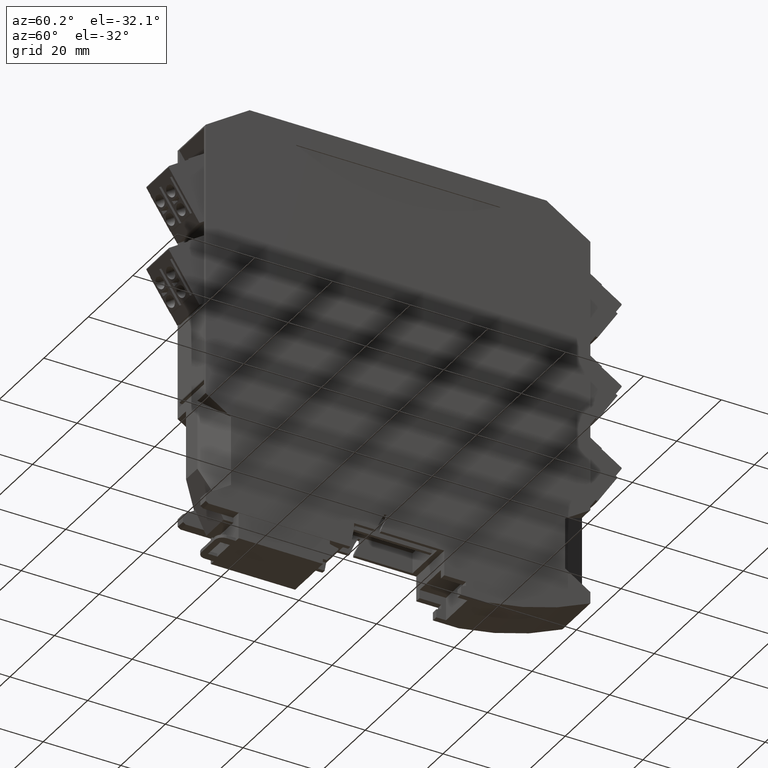
[diagram: clean part render]
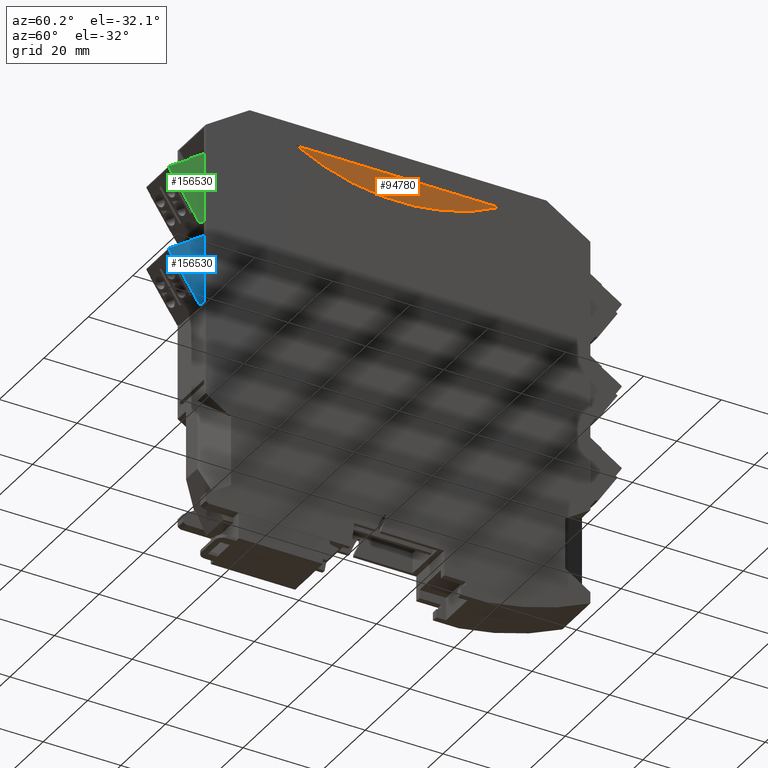
[diagram: same view with three faces highlighted in distinct colors, each labeled with its STEP entity id]
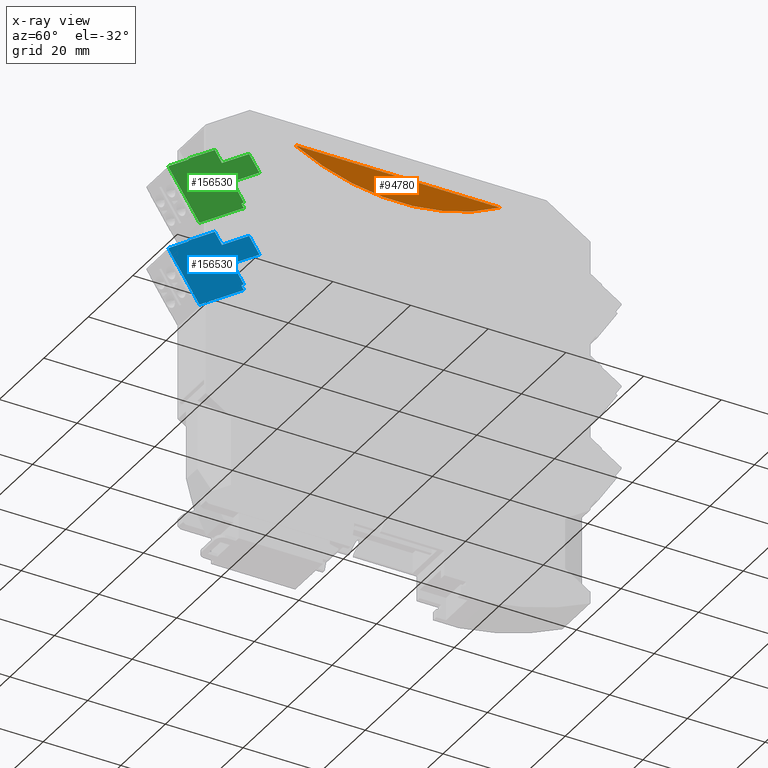
[diagram: x-ray of the same camera — body ghosted, the three highlighted faces saturated]
A machine part, auxiliary view with three faces highlighted in distinct colors.
The next image is the same camera in x-ray (body ghosted, the three faces saturated) — at least one of them is partly hidden behind the body in this view.
Their STEP definitions:

[orange] entity #94780 — the highlighted planar face has unit normal (1, -0, -0).
#94130=CARTESIAN_POINT('',(12.3999992223139,75.8499500002824,
108.249999999994));
#94140=VERTEX_POINT('',#94130);
#94170=CARTESIAN_POINT('',(12.3999992223139,16.8702257341715,
108.249999999997));
#94180=DIRECTION('',(-1.13632427452536E-31,1.,-4.97572203083267E-14));
#94190=VECTOR('',#94180,1.);
#94200=LINE('',#94170,#94190);
#94210=CARTESIAN_POINT('',(12.3999992223139,23.1552602197185,
108.249999999997));
#94220=VERTEX_POINT('',#94210);
#94230=EDGE_CURVE('',#94220,#94140,#94200,.T.);
#94470=CARTESIAN_POINT('',(12.3999992223139,49.5000000002872,
104.849999999959));
#94480=DIRECTION('',(1.,-5.21592700555424E-36,-2.28384227807285E-18));
#94490=DIRECTION('',(-4.191076862855E-30,1.,-1.83510136361891E-12));
#94500=AXIS2_PLACEMENT_3D('',#94470,#94480,#94490);
#94510=PLANE('',#94500);
#94520=ORIENTED_EDGE('',*,*,#94230,.F.);
#94530=CARTESIAN_POINT('',(12.3999992223139,49.5000000003095,
87.6631628058867));
#94540=DIRECTION('',(-1.40607370632767E-18,-0.788010753607329,
-0.615661475324882));
#94550=VECTOR('',#94540,1.);
#94560=LINE('',#94530,#94550);
#94570=CARTESIAN_POINT('',(12.3999992223139,75.7980109545857,
108.209420770137));
#94580=VERTEX_POINT('',#94570);
#94590=EDGE_CURVE('',#94140,#94580,#94560,.T.);
#94600=ORIENTED_EDGE('',*,*,#94590,.F.);
#94610=CARTESIAN_POINT('',(12.3999992223139,49.5000000003042,
156.393092299507));
#94620=DIRECTION('',(-1.,5.21592700555424E-36,2.28384227807285E-18));
#94630=DIRECTION('',(-1.13593727821452E-31,-1.,-4.97357076646706E-14));
#94640=AXIS2_PLACEMENT_3D('',#94610,#94620,#94630);
#94650=CIRCLE('',#94640,54.8930922995028);
#94660=CARTESIAN_POINT('',(12.3999992223139,23.2192573012937,
108.199999999986));
#94670=VERTEX_POINT('',#94660);
#94680=EDGE_CURVE('',#94580,#94670,#94650,.T.);
#94690=ORIENTED_EDGE('',*,*,#94680,.F.);
#94700=CARTESIAN_POINT('',(12.3999992223139,49.5000000003095,
87.6672334752794));
#94710=DIRECTION('',(1.40607370633292E-18,-0.788010753605531,
0.615661475327183));
#94720=VECTOR('',#94710,1.);
#94730=LINE('',#94700,#94720);
#94740=EDGE_CURVE('',#94670,#94220,#94730,.T.);
#94750=ORIENTED_EDGE('',*,*,#94740,.F.);
#94760=EDGE_LOOP('',(#94750,#94690,#94600,#94520));
#94770=FACE_OUTER_BOUND('',#94760,.T.);
#94780=ADVANCED_FACE('',(#94770),#94510,.T.);

[blue] entity #156530 — the highlighted planar face has unit normal (1, -0, -0).
#155450=CARTESIAN_POINT('',(31.0390685734126,23.6307048378946,
-0.0250000000000341));
#155460=DIRECTION('',(0.,0.,-1.));
#155470=DIRECTION('',(-1.,7.91692437432842E-14,0.));
#155480=AXIS2_PLACEMENT_3D('',#155450,#155460,#155470);
#155490=PLANE('',#155480);
#155500=CARTESIAN_POINT('',(22.0140685734121,0.,-0.0250000000000341));
#155510=DIRECTION('',(0.,-1.,0.));
#155520=VECTOR('',#155510,1.);
#155530=LINE('',#155500,#155520);
#155540=CARTESIAN_POINT('',(22.014068573413,31.2307048378954,
-0.0250000000000341));
#155550=VERTEX_POINT('',#155540);
#155560=CARTESIAN_POINT('',(22.014068573413,27.8307048378961,
-0.0250000000000341));
#155570=VERTEX_POINT('',#155560);
#155580=EDGE_CURVE('',#155550,#155570,#155530,.T.);
#155590=ORIENTED_EDGE('',*,*,#155580,.F.);
#155600=CARTESIAN_POINT('',(0.,27.8307048378961,-0.0250000000000306));
#155610=DIRECTION('',(1.,-1.11892558990331E-45,0.));
#155620=VECTOR('',#155610,1.);
#155630=LINE('',#155600,#155620);
#155640=CARTESIAN_POINT('',(13.6840685734126,27.8307048378961,
-0.0250000000000341));
#155650=VERTEX_POINT('',#155640);
#155660=EDGE_CURVE('',#155650,#155570,#155630,.T.);
#155670=ORIENTED_EDGE('',*,*,#155660,.T.);
#155680=CARTESIAN_POINT('',(13.6840685734126,0.,-0.0250000000000341));
#155690=DIRECTION('',(-1.11892558990331E-45,-1.,1.26217744835362E-29));
#155700=VECTOR('',#155690,1.);
#155710=LINE('',#155680,#155700);
#155720=CARTESIAN_POINT('',(13.6840685734126,22.9307048378954,
-0.0250000000000341));
#155730=VERTEX_POINT('',#155720);
#155740=EDGE_CURVE('',#155650,#155730,#155710,.T.);
#155750=ORIENTED_EDGE('',*,*,#155740,.F.);
#155760=CARTESIAN_POINT('',(0.,22.9307048378954,-0.0250000000000306));
#155770=DIRECTION('',(1.,-1.11892558990331E-45,0.));
#155780=VECTOR('',#155770,1.);
#155790=LINE('',#155760,#155780);
#155800=CARTESIAN_POINT('',(22.014068573413,22.9307048378954,
-0.0250000000000341));
#155810=VERTEX_POINT('',#155800);
#155820=EDGE_CURVE('',#155730,#155810,#155790,.T.);
#155830=ORIENTED_EDGE('',*,*,#155820,.F.);
#155840=CARTESIAN_POINT('',(22.014068573412,17.5002595155735,
-0.0250000000000341));
#155850=VERTEX_POINT('',#155840);
#155860=EDGE_CURVE('',#155810,#155850,#155530,.T.);
#155870=ORIENTED_EDGE('',*,*,#155860,.F.);
#155880=CARTESIAN_POINT('',(0.,19.426240953831,-0.0250000000000341));
#155890=DIRECTION('',(0.996194698091739,-0.0871557427477325,0.));
#155900=VECTOR('',#155890,1.);
#155910=LINE('',#155880,#155900);
#155920=CARTESIAN_POINT('',(22.8090821771809,17.4307048378947,
-0.0250000000000341));
#155930=VERTEX_POINT('',#155920);
#155940=EDGE_CURVE('',#155850,#155930,#155910,.T.);
#155950=ORIENTED_EDGE('',*,*,#155940,.F.);
#155960=CARTESIAN_POINT('',(22.8090821771796,0.,-0.0250000000000341));
#155970=DIRECTION('',(7.46069872548105E-14,1.,0.));
#155980=VECTOR('',#155970,1.);
#155990=LINE('',#155960,#155980);
#156000=CARTESIAN_POINT('',(22.8090821771808,16.2307048378947,
-0.0250000000000341));
#156010=VERTEX_POINT('',#156000);
#156020=EDGE_CURVE('',#156010,#155930,#155990,.T.);
#156030=ORIENTED_EDGE('',*,*,#156020,.T.);
#156040=CARTESIAN_POINT('',(0.,16.2307048378964,-0.0250000000000341));
#156050=DIRECTION('',(1.,-7.46069872548105E-14,0.));
#156060=VECTOR('',#156050,1.);
#156070=LINE('',#156040,#156060);
#156080=CARTESIAN_POINT('',(36.4640685734126,16.2307048378937,
-0.0250000000000341));
#156090=VERTEX_POINT('',#156080);
#156100=EDGE_CURVE('',#156010,#156090,#156070,.T.);
#156110=ORIENTED_EDGE('',*,*,#156100,.F.);
#156120=CARTESIAN_POINT('',(36.4640685734126,1.20081722343457E-12,
-0.0250000000000341));
#156130=DIRECTION('',(0.,-1.,0.));
#156140=VECTOR('',#156130,1.);
#156150=LINE('',#156120,#156140);
#156160=CARTESIAN_POINT('',(36.4640685734126,30.7307048378945,
-0.0250000000000341));
#156170=VERTEX_POINT('',#156160);
#156180=EDGE_CURVE('',#156170,#156090,#156150,.T.);
#156190=ORIENTED_EDGE('',*,*,#156180,.T.);
#156200=CARTESIAN_POINT('',(36.1640685734126,30.7307048378945,
-0.0250000000000341));
#156210=DIRECTION('',(0.,0.,-1.));
#156220=DIRECTION('',(-1.,0.,0.));
#156230=AXIS2_PLACEMENT_3D('',#156200,#156210,#156220);
#156240=CIRCLE('',#156230,0.3);
#156250=CARTESIAN_POINT('',(36.1640685734126,31.0307048378945,
-0.0250000000000341));
#156260=VERTEX_POINT('',#156250);
#156270=EDGE_CURVE('',#156260,#156170,#156240,.T.);
#156280=ORIENTED_EDGE('',*,*,#156270,.T.);
#156290=CARTESIAN_POINT('',(-2.48689957516035E-14,31.0307048378945,
-0.0250000000000341));
#156300=DIRECTION('',(-1.,0.,0.));
#156310=VECTOR('',#156300,1.);
#156320=LINE('',#156290,#156310);
#156330=CARTESIAN_POINT('',(30.1640685734126,31.0307048378945,
-0.0250000000000341));
#156340=VERTEX_POINT('',#156330);
#156350=EDGE_CURVE('',#156260,#156340,#156320,.T.);
#156360=ORIENTED_EDGE('',*,*,#156350,.F.);
#156370=CARTESIAN_POINT('',(30.1640685734102,1.26121335597418E-12,
-0.0250000000000341));
#156380=DIRECTION('',(-7.91692437432842E-14,-1.,0.));
#156390=VECTOR('',#156380,1.);
#156400=LINE('',#156370,#156390);
#156410=CARTESIAN_POINT('',(30.1640685734126,31.2307048378948,
-0.0250000000000341));
#156420=VERTEX_POINT('',#156410);
#156430=EDGE_CURVE('',#156420,#156340,#156400,.T.);
#156440=ORIENTED_EDGE('',*,*,#156430,.T.);
#156450=CARTESIAN_POINT('',(-2.48689957516035E-14,31.230704837897,
-0.0250000000000341));
#156460=DIRECTION('',(1.,-7.46069872548105E-14,0.));
#156470=VECTOR('',#156460,1.);
#156480=LINE('',#156450,#156470);
#156490=EDGE_CURVE('',#155550,#156420,#156480,.T.);
#156500=ORIENTED_EDGE('',*,*,#156490,.T.);
#156510=EDGE_LOOP('',(#156500,#156440,#156360,#156280,#156190,#156110,
#156030,#155950,#155870,#155830,#155750,#155670,#155590));
#156520=FACE_OUTER_BOUND('',#156510,.T.);
#156530=ADVANCED_FACE('',(#156520),#155490,.T.);

[green] entity #156530 — the highlighted planar face has unit normal (1, -0, -0).
#155450=CARTESIAN_POINT('',(31.0390685734126,23.6307048378946,
-0.0250000000000341));
#155460=DIRECTION('',(0.,0.,-1.));
#155470=DIRECTION('',(-1.,7.91692437432842E-14,0.));
#155480=AXIS2_PLACEMENT_3D('',#155450,#155460,#155470);
#155490=PLANE('',#155480);
#155500=CARTESIAN_POINT('',(22.0140685734121,0.,-0.0250000000000341));
#155510=DIRECTION('',(0.,-1.,0.));
#155520=VECTOR('',#155510,1.);
#155530=LINE('',#155500,#155520);
#155540=CARTESIAN_POINT('',(22.014068573413,31.2307048378954,
-0.0250000000000341));
#155550=VERTEX_POINT('',#155540);
#155560=CARTESIAN_POINT('',(22.014068573413,27.8307048378961,
-0.0250000000000341));
#155570=VERTEX_POINT('',#155560);
#155580=EDGE_CURVE('',#155550,#155570,#155530,.T.);
#155590=ORIENTED_EDGE('',*,*,#155580,.F.);
#155600=CARTESIAN_POINT('',(0.,27.8307048378961,-0.0250000000000306));
#155610=DIRECTION('',(1.,-1.11892558990331E-45,0.));
#155620=VECTOR('',#155610,1.);
#155630=LINE('',#155600,#155620);
#155640=CARTESIAN_POINT('',(13.6840685734126,27.8307048378961,
-0.0250000000000341));
#155650=VERTEX_POINT('',#155640);
#155660=EDGE_CURVE('',#155650,#155570,#155630,.T.);
#155670=ORIENTED_EDGE('',*,*,#155660,.T.);
#155680=CARTESIAN_POINT('',(13.6840685734126,0.,-0.0250000000000341));
#155690=DIRECTION('',(-1.11892558990331E-45,-1.,1.26217744835362E-29));
#155700=VECTOR('',#155690,1.);
#155710=LINE('',#155680,#155700);
#155720=CARTESIAN_POINT('',(13.6840685734126,22.9307048378954,
-0.0250000000000341));
#155730=VERTEX_POINT('',#155720);
#155740=EDGE_CURVE('',#155650,#155730,#155710,.T.);
#155750=ORIENTED_EDGE('',*,*,#155740,.F.);
#155760=CARTESIAN_POINT('',(0.,22.9307048378954,-0.0250000000000306));
#155770=DIRECTION('',(1.,-1.11892558990331E-45,0.));
#155780=VECTOR('',#155770,1.);
#155790=LINE('',#155760,#155780);
#155800=CARTESIAN_POINT('',(22.014068573413,22.9307048378954,
-0.0250000000000341));
#155810=VERTEX_POINT('',#155800);
#155820=EDGE_CURVE('',#155730,#155810,#155790,.T.);
#155830=ORIENTED_EDGE('',*,*,#155820,.F.);
#155840=CARTESIAN_POINT('',(22.014068573412,17.5002595155735,
-0.0250000000000341));
#155850=VERTEX_POINT('',#155840);
#155860=EDGE_CURVE('',#155810,#155850,#155530,.T.);
#155870=ORIENTED_EDGE('',*,*,#155860,.F.);
#155880=CARTESIAN_POINT('',(0.,19.426240953831,-0.0250000000000341));
#155890=DIRECTION('',(0.996194698091739,-0.0871557427477325,0.));
#155900=VECTOR('',#155890,1.);
#155910=LINE('',#155880,#155900);
#155920=CARTESIAN_POINT('',(22.8090821771809,17.4307048378947,
-0.0250000000000341));
#155930=VERTEX_POINT('',#155920);
#155940=EDGE_CURVE('',#155850,#155930,#155910,.T.);
#155950=ORIENTED_EDGE('',*,*,#155940,.F.);
#155960=CARTESIAN_POINT('',(22.8090821771796,0.,-0.0250000000000341));
#155970=DIRECTION('',(7.46069872548105E-14,1.,0.));
#155980=VECTOR('',#155970,1.);
#155990=LINE('',#155960,#155980);
#156000=CARTESIAN_POINT('',(22.8090821771808,16.2307048378947,
-0.0250000000000341));
#156010=VERTEX_POINT('',#156000);
#156020=EDGE_CURVE('',#156010,#155930,#155990,.T.);
#156030=ORIENTED_EDGE('',*,*,#156020,.T.);
#156040=CARTESIAN_POINT('',(0.,16.2307048378964,-0.0250000000000341));
#156050=DIRECTION('',(1.,-7.46069872548105E-14,0.));
#156060=VECTOR('',#156050,1.);
#156070=LINE('',#156040,#156060);
#156080=CARTESIAN_POINT('',(36.4640685734126,16.2307048378937,
-0.0250000000000341));
#156090=VERTEX_POINT('',#156080);
#156100=EDGE_CURVE('',#156010,#156090,#156070,.T.);
#156110=ORIENTED_EDGE('',*,*,#156100,.F.);
#156120=CARTESIAN_POINT('',(36.4640685734126,1.20081722343457E-12,
-0.0250000000000341));
#156130=DIRECTION('',(0.,-1.,0.));
#156140=VECTOR('',#156130,1.);
#156150=LINE('',#156120,#156140);
#156160=CARTESIAN_POINT('',(36.4640685734126,30.7307048378945,
-0.0250000000000341));
#156170=VERTEX_POINT('',#156160);
#156180=EDGE_CURVE('',#156170,#156090,#156150,.T.);
#156190=ORIENTED_EDGE('',*,*,#156180,.T.);
#156200=CARTESIAN_POINT('',(36.1640685734126,30.7307048378945,
-0.0250000000000341));
#156210=DIRECTION('',(0.,0.,-1.));
#156220=DIRECTION('',(-1.,0.,0.));
#156230=AXIS2_PLACEMENT_3D('',#156200,#156210,#156220);
#156240=CIRCLE('',#156230,0.3);
#156250=CARTESIAN_POINT('',(36.1640685734126,31.0307048378945,
-0.0250000000000341));
#156260=VERTEX_POINT('',#156250);
#156270=EDGE_CURVE('',#156260,#156170,#156240,.T.);
#156280=ORIENTED_EDGE('',*,*,#156270,.T.);
#156290=CARTESIAN_POINT('',(-2.48689957516035E-14,31.0307048378945,
-0.0250000000000341));
#156300=DIRECTION('',(-1.,0.,0.));
#156310=VECTOR('',#156300,1.);
#156320=LINE('',#156290,#156310);
#156330=CARTESIAN_POINT('',(30.1640685734126,31.0307048378945,
-0.0250000000000341));
#156340=VERTEX_POINT('',#156330);
#156350=EDGE_CURVE('',#156260,#156340,#156320,.T.);
#156360=ORIENTED_EDGE('',*,*,#156350,.F.);
#156370=CARTESIAN_POINT('',(30.1640685734102,1.26121335597418E-12,
-0.0250000000000341));
#156380=DIRECTION('',(-7.91692437432842E-14,-1.,0.));
#156390=VECTOR('',#156380,1.);
#156400=LINE('',#156370,#156390);
#156410=CARTESIAN_POINT('',(30.1640685734126,31.2307048378948,
-0.0250000000000341));
#156420=VERTEX_POINT('',#156410);
#156430=EDGE_CURVE('',#156420,#156340,#156400,.T.);
#156440=ORIENTED_EDGE('',*,*,#156430,.T.);
#156450=CARTESIAN_POINT('',(-2.48689957516035E-14,31.230704837897,
-0.0250000000000341));
#156460=DIRECTION('',(1.,-7.46069872548105E-14,0.));
#156470=VECTOR('',#156460,1.);
#156480=LINE('',#156450,#156470);
#156490=EDGE_CURVE('',#155550,#156420,#156480,.T.);
#156500=ORIENTED_EDGE('',*,*,#156490,.T.);
#156510=EDGE_LOOP('',(#156500,#156440,#156360,#156280,#156190,#156110,
#156030,#155950,#155870,#155830,#155750,#155670,#155590));
#156520=FACE_OUTER_BOUND('',#156510,.T.);
#156530=ADVANCED_FACE('',(#156520),#155490,.T.);